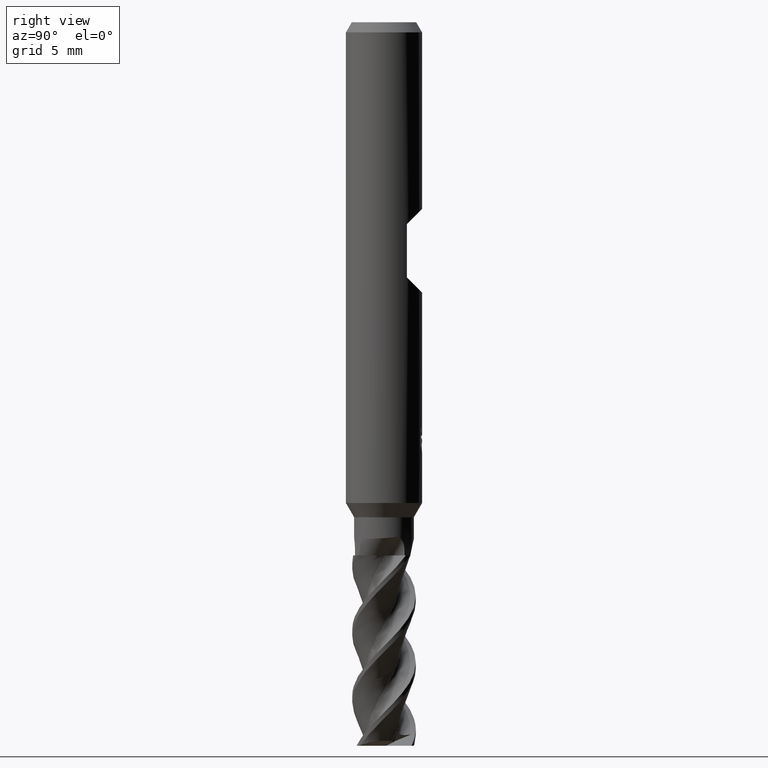
[diagram: clean part render]
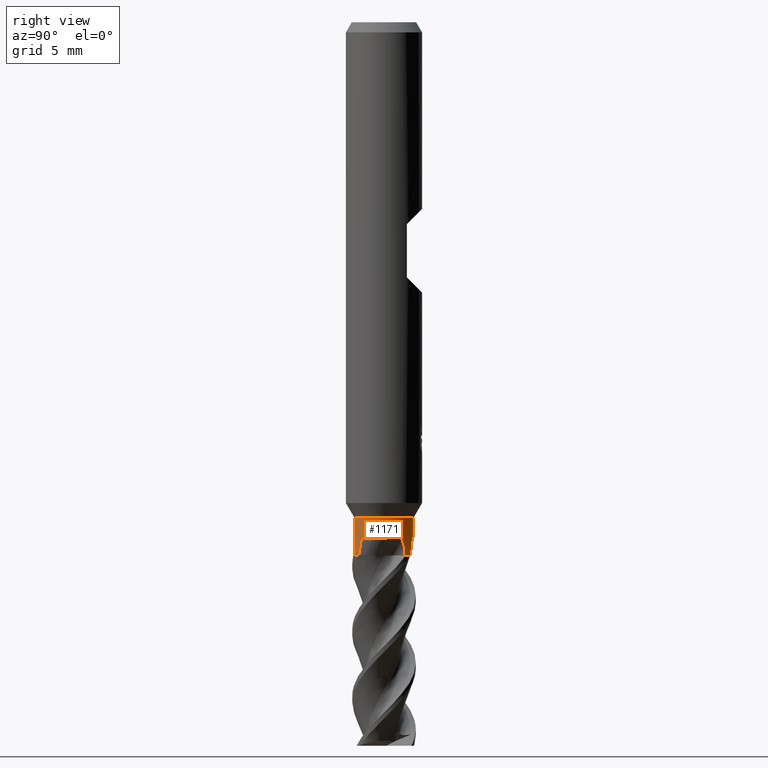
[diagram: same view with one face highlighted and labeled with its STEP entity id]
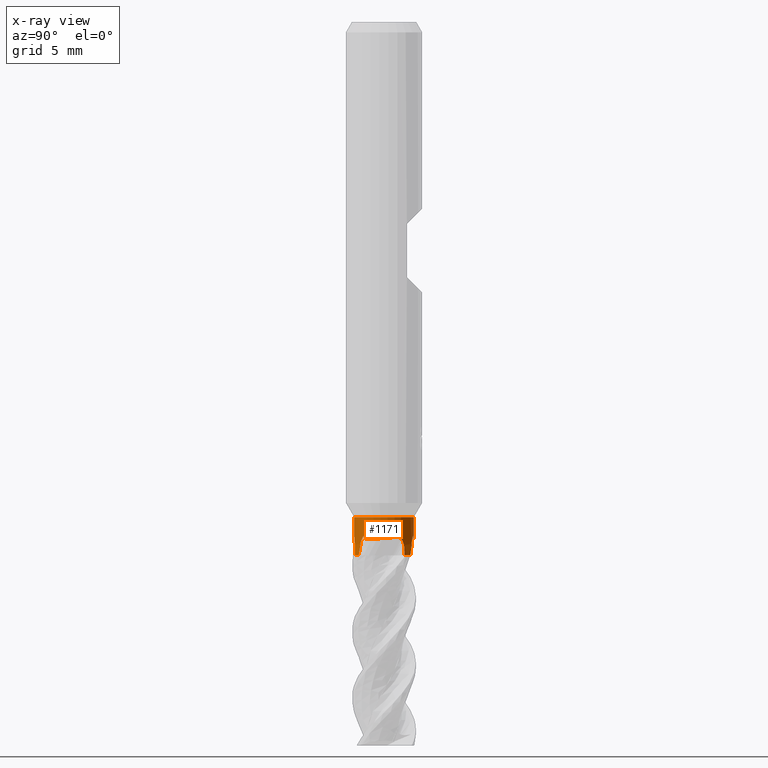
[diagram: x-ray of the same camera — body ghosted, the highlighted face saturated]
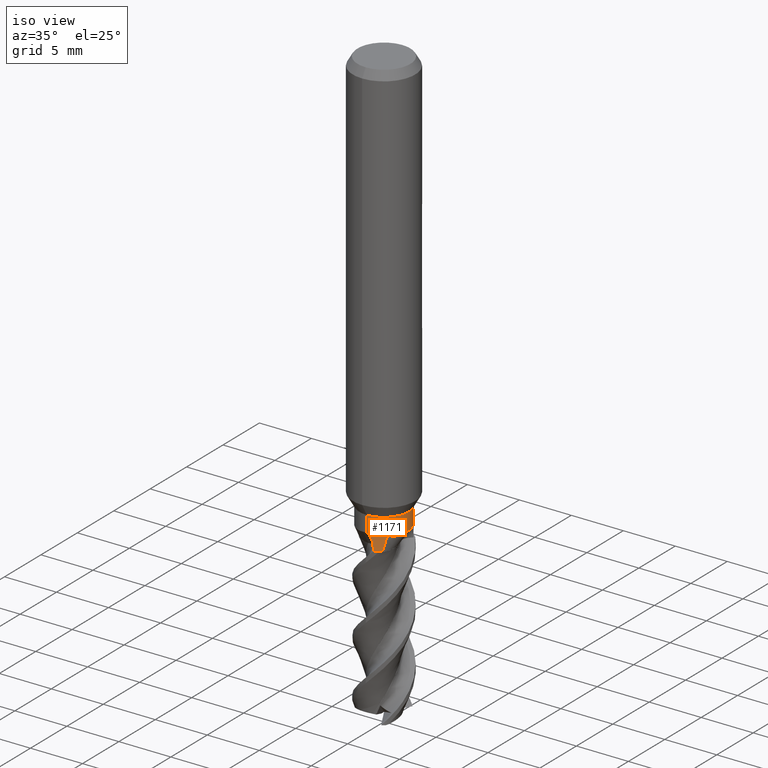
[diagram: same view with one face highlighted and labeled with its STEP entity id]
A machine part, right view. The second image highlights one B-rep face of the part: STEP entity #1171.
The next image is the same camera in x-ray: the body ghosted, the highlighted face saturated — about 0% of this face is hidden behind the body in this view.
A second angle (iso view) of the same face is appended — the face is thin or edge-on in the first view.
In plain terms, the highlighted cylindrical surface (edge-blend (fillet) strip) has radius 2.35 mm, axis along (-0, -0, 1).
Its self-contained STEP definition (entity closure, byte-faithful):
#519=EDGE_CURVE('',#1081,#685,#1438,.T.);
#521=VERTEX_POINT('',#1440);
#573=VERTEX_POINT('',#1503);
#593=EDGE_CURVE('',#619,#1257,#1525,.T.);
#619=VERTEX_POINT('',#1555);
#629=VERTEX_POINT('',#1566);
#673=VERTEX_POINT('',#1611);
#683=EDGE_CURVE('',#1081,#839,#1623,.T.);
#685=VERTEX_POINT('',#1625);
#691=VERTEX_POINT('',#1631);
#699=VERTEX_POINT('',#1639);
#791=EDGE_CURVE('',#691,#629,#1745,.T.);
#801=EDGE_CURVE('',#573,#1087,#1756,.T.);
#829=EDGE_CURVE('',#691,#619,#1785,.T.);
#839=VERTEX_POINT('',#1795);
#869=EDGE_CURVE('',#521,#1323,#1826,.T.);
#903=EDGE_CURVE('',#1115,#1087,#1861,.T.);
#979=EDGE_CURVE('',#685,#629,#1943,.T.);
#995=EDGE_CURVE('',#699,#1323,#1960,.T.);
#1081=VERTEX_POINT('',#2051);
#1087=VERTEX_POINT('',#2058);
#1103=EDGE_CURVE('',#1257,#1343,#2074,.T.);
#1115=VERTEX_POINT('',#2087);
#1171=ADVANCED_FACE('',(#2150),#2151,.T.);
#1205=EDGE_CURVE('',#699,#673,#2191,.T.);
#1257=VERTEX_POINT('',#2245);
#1307=EDGE_CURVE('',#1343,#521,#2299,.T.);
#1321=EDGE_CURVE('',#1115,#839,#2314,.T.);
#1323=VERTEX_POINT('',#2316);
#1343=VERTEX_POINT('',#2340);
#1363=EDGE_CURVE('',#673,#573,#2361,.T.);
#1438=B_SPLINE_CURVE_WITH_KNOTS('',3,(#3495,#3496,#3497,#3498,#3499,#3500,#3501,#3502,#3503,#3504,#3505,#3506,#3507,#3508),.UNSPECIFIED.,.F.,.F.,(4,2,2,2,2,2,4),(0.0,0.225791534576453,0.420775986477734,0.636192857529891,0.942741595366109,1.3016837286876,1.68002176183912),.UNSPECIFIED.);
#1440=CARTESIAN_POINT('',(1.70131929279764,1.62104215443477,-41.6538603278036));
#1503=CARTESIAN_POINT('',(0.503054722043635,2.29547401403928,-40.5699536610327));
#1525=B_SPLINE_CURVE_WITH_KNOTS('',3,(#4620,#4621,#4622,#4623,#4624,#4625,#4626,#4627,#4628,#4629,#4630,#4631,#4632,#4633,#4634,#4635,#4636,#4637,#4638,#4639,#4640,#4641,#4642,#4643,#4644,#4645,#4646,#4647,#4648,#4649,#4650,#4651,#4652,#4653,#4654,#4655,#4656,#4657,#4658,#4659,#4660,#4661,#4662,#4663,#4664,#4665,#4666,#4667,#4668,#4669,#4670,#4671),.UNSPECIFIED.,.F.,.F.,(4,2,2,2,2,2,2,2,2,2,2,2,2,2,2,2,2,2,2,2,2,2,2,2,2,4),(0.0,0.00686553370533188,0.0140347302817056,0.0191756776705009,0.0241776996539955,0.0311038794819155,0.0446836047708644,0.0835293244651358,0.245473949005131,0.334478372924057,0.3440566108486,0.347873757180642,0.350656497003795,0.353638380756822,0.357630254954595,0.366459212286401,0.419556562151446,0.521538347461981,0.545729538114803,0.556764132289915,0.563383270558508,0.568959270973017,0.575273671121209,0.585595431378969,0.609589966627689,0.679119300293392),.UNSPECIFIED.);
#1555=CARTESIAN_POINT('',(1.44793072653657,-1.85088130728345,-41.1092844546738));
#1566=CARTESIAN_POINT('',(0.559533020422345,-2.28236451986904,-42.0000000000006));
#1611=CARTESIAN_POINT('',(0.878944868229086,2.17938544574239,-41.1092844546744));
#1623=LINE('',#4908,#4909);
#1625=CARTESIAN_POINT('',(0.553204039947199,-2.28390680472871,-41.6538603278049));
#1631=CARTESIAN_POINT('',(1.23768405026327,-1.99759935778521,-42.0));
#1639=CARTESIAN_POINT('',(1.11112976529375,2.07066550827947,-42.0));
#1745=CIRCLE('',#6019,2.34995);
#1756=B_SPLINE_CURVE_WITH_KNOTS('',3,(#6034,#6035,#6036,#6037,#6038,#6039,#6040,#6041,#6042,#6043,#6044,#6045,#6046,#6047,#6048,#6049),.UNSPECIFIED.,.F.,.F.,(4,2,2,2,2,2,2,4),(0.0,0.0531139224717142,0.0994830758055718,0.160585596364211,0.271105314126265,0.523818529871865,0.872101180561716,1.20975741269743),.UNSPECIFIED.);
#1785=B_SPLINE_CURVE_WITH_KNOTS('',3,(#6090,#6091,#6092,#6093),.UNSPECIFIED.,.F.,.F.,(4,4),(0.0,1.14806881434368),.UNSPECIFIED.);
#1795=CARTESIAN_POINT('',(2.8777637011649E-016,-2.34995,-39.0));
#1826=B_SPLINE_CURVE_WITH_KNOTS('',3,(#6167,#6168,#6169,#6170),.UNSPECIFIED.,.F.,.F.,(4,4),(0.0,0.346198166740086),.UNSPECIFIED.);
#1861=LINE('',#6543,#6544);
#1943=B_SPLINE_CURVE_WITH_KNOTS('',3,(#7288,#7289,#7290,#7291),.UNSPECIFIED.,.F.,.F.,(4,4),(0.0,0.34619816674481),.UNSPECIFIED.);
#1960=CIRCLE('',#7319,2.34995);
#2051=CARTESIAN_POINT('',(-1.28546618358942E-015,-2.34994999999999,-40.5588321995923));
#2058=CARTESIAN_POINT('',(-1.87955772232037E-014,2.34995,-40.7022480124813));
#2074=B_SPLINE_CURVE_WITH_KNOTS('',3,(#8205,#8206,#8207,#8208,#8209,#8210,#8211,#8212,#8213,#8214,#8215,#8216,#8217,#8218,#8219,#8220),.UNSPECIFIED.,.F.,.F.,(4,2,2,2,2,2,2,4),(0.0,0.0531139224718822,0.0994830758061765,0.160585596359143,0.271105314086711,0.523818529726763,0.87210118027085,1.2097574122651),.UNSPECIFIED.);
#2087=CARTESIAN_POINT('',(0.0,2.34995,-39.0));
#2150=FACE_OUTER_BOUND('',#8838,.T.);
#2151=CYLINDRICAL_SURFACE('',#8839,2.34995);
#2191=B_SPLINE_CURVE_WITH_KNOTS('',3,(#8938,#8939,#8940,#8941),.UNSPECIFIED.,.F.,.F.,(4,4),(0.0,1.14806881434053),.UNSPECIFIED.);
#2245=CARTESIAN_POINT('',(1.73641144886311,-1.58339517580329,-40.5699536610326));
#2299=B_SPLINE_CURVE_WITH_KNOTS('',3,(#9378,#9379,#9380,#9381,#9382,#9383,#9384,#9385,#9386,#9387,#9388,#9389,#9390,#9391),.UNSPECIFIED.,.F.,.F.,(4,2,2,2,2,2,4),(0.0,0.225791534576474,0.420775986477571,0.63619285752917,0.942741595364887,1.30168372868532,1.68002176183582),.UNSPECIFIED.);
#2314=CIRCLE('',#9629,2.34995);
#2316=CARTESIAN_POINT('',(1.69681914469172,1.62575206987648,-42.0));
#2340=CARTESIAN_POINT('',(2.19850851731228,0.829954999867681,-40.5598089890764));
#2361=B_SPLINE_CURVE_WITH_KNOTS('',3,(#10317,#10318,#10319,#10320,#10321,#10322,#10323,#10324,#10325,#10326,#10327,#10328,#10329,#10330,#10331,#10332,#10333,#10334,#10335,#10336,#10337,#10338,#10339,#10340,#10341,#10342,#10343,#10344,#10345,#10346,#10347,#10348,#10349,#10350,#10351,#10352,#10353,#10354,#10355,#10356,#10357,#10358,#10359,#10360,#10361,#10362,#10363,#10364,#10365,#10366,#10367,#10368),.UNSPECIFIED.,.F.,.F.,(4,2,2,2,2,2,2,2,2,2,2,2,2,2,2,2,2,2,2,2,2,2,2,2,2,4),(0.0,0.00686553370482903,0.0140347302793866,0.0191756776673104,0.0241776996501374,0.0311038794775011,0.0446836047691016,0.0835293244642946,0.245473949012331,0.334478372933024,0.344056610860775,0.347873757209399,0.350656497011455,0.353638380725525,0.35763025487973,0.36645921211449,0.419556561331576,0.521538345368107,0.545729535736297,0.556764129778505,0.563383267965177,0.5689592683093,0.575273668376955,0.585595428504704,0.609589963443304,0.679119296254887),.UNSPECIFIED.);
#3495=CARTESIAN_POINT('',(-0.380492144791821,-2.31894172635962,-40.5598089893473));
#3496=CARTESIAN_POINT('',(-0.310457312427793,-2.33043304728132,-40.5347546854825));
#3497=CARTESIAN_POINT('',(-0.23719770734045,-2.33915437111843,-40.521456335779));
#3498=CARTESIAN_POINT('',(-0.0975671450078133,-2.3488193392381,-40.5274810078477));
#3499=CARTESIAN_POINT('',(-0.0351952864589808,-2.35043466549848,-40.5424723309645));
#3500=CARTESIAN_POINT('',(0.0896180938165705,-2.34915433631987,-40.5980251047044));
#3501=CARTESIAN_POINT('',(0.14835758492366,-2.34583956637718,-40.6397437812644));
#3502=CARTESIAN_POINT('',(0.273996437880567,-2.3350964280885,-40.7595425032997));
#3503=CARTESIAN_POINT('',(0.334007869289553,-2.32659174348307,-40.8455849215127));
#3504=CARTESIAN_POINT('',(0.437305029424302,-2.30959250111585,-41.0419905274011));
#3505=CARTESIAN_POINT('',(0.478146715235826,-2.30096722654898,-41.157915284844));
#3506=CARTESIAN_POINT('',(0.535215554264161,-2.28838559098319,-41.3985450619003));
#3507=CARTESIAN_POINT('',(0.55077109204987,-2.28449610924968,-41.5264834440901));
#3508=CARTESIAN_POINT('',(0.553204039849993,-2.28390680475224,-41.6538603278053));
#4620=CARTESIAN_POINT('',(1.44793072653653,-1.85088130728348,-41.1092844546739));
#4621=CARTESIAN_POINT('',(1.44622004539126,-1.85221956046255,-41.110005517862));
#4622=CARTESIAN_POINT('',(1.4444180222367,-1.85362529649962,-41.1105886021642));
#4623=CARTESIAN_POINT('',(1.44075232520119,-1.85647606146355,-41.1111692321362));
#4624=CARTESIAN_POINT('',(1.43881544529356,-1.85797752277227,-41.1111515939276));
#4625=CARTESIAN_POINT('',(1.43567047573259,-1.86040803129351,-41.1101210425335));
#4626=CARTESIAN_POINT('',(1.43446005733217,-1.86134123986697,-41.1094072180662));
#4627=CARTESIAN_POINT('',(1.4323250418098,-1.86298463291852,-41.1073612970217));
#4628=CARTESIAN_POINT('',(1.43146255038531,-1.86364716535733,-41.1061124564501));
#4629=CARTESIAN_POINT('',(1.42978369526497,-1.86493568182439,-41.1027433332725));
#4630=CARTESIAN_POINT('',(1.42913180635648,-1.86543495909617,-41.1005104863712));
#4631=CARTESIAN_POINT('',(1.42783563381809,-1.86642748965167,-41.0938710341354));
#4632=CARTESIAN_POINT('',(1.42769886477125,-1.8665318079045,-41.0889101623804));
#4633=CARTESIAN_POINT('',(1.42827973362049,-1.86608743061468,-41.0714727004542));
#4634=CARTESIAN_POINT('',(1.43125862884117,-1.86380722265763,-41.056201793545));
#4635=CARTESIAN_POINT('',(1.44637191726553,-1.8521636136779,-40.992156576135));
#4636=CARTESIAN_POINT('',(1.47522013780011,-1.8298949967538,-40.9163578469955));
#4637=CARTESIAN_POINT('',(1.53478355410808,-1.77973795441446,-40.7858934675908));
#4638=CARTESIAN_POINT('',(1.55773811117541,-1.75974263464434,-40.739339228007));
#4639=CARTESIAN_POINT('',(1.5833558837676,-1.73645053611971,-40.6906092411644));
#4640=CARTESIAN_POINT('',(1.58585616267831,-1.73416747433305,-40.685887182833));
#4641=CARTESIAN_POINT('',(1.58936582268046,-1.73094862019536,-40.6793071049955));
#4642=CARTESIAN_POINT('',(1.59036764675302,-1.73002821083508,-40.6774343042913));
#4643=CARTESIAN_POINT('',(1.5921025404937,-1.7284315119097,-40.6742006502435));
#4644=CARTESIAN_POINT('',(1.59283493780395,-1.72775659709615,-40.6728384688737));
#4645=CARTESIAN_POINT('',(1.59435391279397,-1.72635504639802,-40.6700194483418));
#4646=CARTESIAN_POINT('',(1.59514068731393,-1.72562810071255,-40.6685626807481));
#4647=CARTESIAN_POINT('',(1.59698302195941,-1.72392351751742,-40.6651594560291));
#4648=CARTESIAN_POINT('',(1.59803951992136,-1.72294421875807,-40.6632139678468));
#4649=CARTESIAN_POINT('',(1.60143834048614,-1.71978790749861,-40.6569751043424));
#4650=CARTESIAN_POINT('',(1.60378903564519,-1.71759604512015,-40.6526904231802));
#4651=CARTESIAN_POINT('',(1.62033427337031,-1.7021044427118,-40.6227526933349));
#4652=CARTESIAN_POINT('',(1.63523750051573,-1.68781046761045,-40.5969037237394));
#4653=CARTESIAN_POINT('',(1.67889742747463,-1.64474761318064,-40.5259877640309));
#4654=CARTESIAN_POINT('',(1.7031598498936,-1.61931477498003,-40.4926566314385));
#4655=CARTESIAN_POINT('',(1.72494997234276,-1.59588540591666,-40.472437724321));
#4656=CARTESIAN_POINT('',(1.7299312780606,-1.59048778869473,-40.4684223510142));
#4657=CARTESIAN_POINT('',(1.7367817542049,-1.58299218539001,-40.4654206122645));
#4658=CARTESIAN_POINT('',(1.73912268035815,-1.58042028770639,-40.4647754601196));
#4659=CARTESIAN_POINT('',(1.74268253664094,-1.57649184269446,-40.465112394961));
#4660=CARTESIAN_POINT('',(1.74398429966969,-1.57505141772449,-40.4655470918732));
#4661=CARTESIAN_POINT('',(1.74619263537428,-1.57260247869555,-40.4671566942159));
#4662=CARTESIAN_POINT('',(1.747068050979,-1.57162956145684,-40.4681595710771));
#4663=CARTESIAN_POINT('',(1.74866213543353,-1.56985583493397,-40.4708267711596));
#4664=CARTESIAN_POINT('',(1.74929957535041,-1.569145155237,-40.4724855798835));
#4665=CARTESIAN_POINT('',(1.750567778745,-1.56773047557553,-40.4771166662968));
#4666=CARTESIAN_POINT('',(1.75096172003591,-1.56729005934365,-40.4803442865091));
#4667=CARTESIAN_POINT('',(1.75155929873815,-1.56662229592782,-40.490622067577));
#4668=CARTESIAN_POINT('',(1.75091845996725,-1.56733888826362,-40.4988212977173));
#4669=CARTESIAN_POINT('',(1.74758561805327,-1.57105801749412,-40.5264297490364));
#4670=CARTESIAN_POINT('',(1.74174586962218,-1.57754524685273,-40.5505606927959));
#4671=CARTESIAN_POINT('',(1.73641144886314,-1.58339517580325,-40.5699536610325));
#4908=CARTESIAN_POINT('',(2.87891921230933E-016,-2.34995,-40.5));
#4909=VECTOR('',#10675,1.0);
#6019=AXIS2_PLACEMENT_3D('',#10791,#10792,#10793);
#6034=CARTESIAN_POINT('',(0.503054719868338,2.295474014516,-40.5699536580264));
#6035=CARTESIAN_POINT('',(0.498282993102471,2.2965197417411,-40.5869710428122));
#6036=CARTESIAN_POINT('',(0.490955457078453,2.29811898266215,-40.6025722865723));
#6037=CARTESIAN_POINT('',(0.470611212543459,2.30236485441525,-40.6285016451115));
#6038=CARTESIAN_POINT('',(0.459155500247241,2.3046937613607,-40.6383297509072));
#6039=CARTESIAN_POINT('',(0.429302714647188,2.3104681410997,-40.6572933579318));
#6040=CARTESIAN_POINT('',(0.409185725321073,2.31416888778545,-40.66567089483));
#6041=CARTESIAN_POINT('',(0.344470517919053,2.32494947099151,-40.684650051691));
#6042=CARTESIAN_POINT('',(0.293358500509554,2.33222945049476,-40.6914968760646));
#6043=CARTESIAN_POINT('',(0.111650848132434,2.35073325833416,-40.7054215016299));
#6044=CARTESIAN_POINT('',(-0.0718905888304362,2.35915519330737,-40.7036180295062));
#6045=CARTESIAN_POINT('',(-0.591700960355418,2.29440740527038,-40.6851789685979));
#6046=CARTESIAN_POINT('',(-0.883241861038663,2.19872113048558,-40.6668392121823));
#6047=CARTESIAN_POINT('',(-1.40509261577722,1.90647937455848,-40.6214477061492));
#6048=CARTESIAN_POINT('',(-1.63222912544642,1.71582841085261,-40.5944276350501));
#6049=CARTESIAN_POINT('',(-1.81801637253946,1.48898672649505,-40.5598089890768));
#6090=CARTESIAN_POINT('',(1.23768405026327,-1.99759935778522,-42.0));
#6091=CARTESIAN_POINT('',(1.34009013346103,-1.93415001028226,-41.6367665929004));
#6092=CARTESIAN_POINT('',(1.43073424987083,-1.86433398347934,-41.2927290891258));
#6093=CARTESIAN_POINT('',(1.44793072478434,-1.8508813086542,-41.1092844577495));
#6167=CARTESIAN_POINT('',(1.70131929279766,1.62104215443477,-41.6538603278036));
#6168=CARTESIAN_POINT('',(1.69975514511047,1.62268376173642,-41.7692374378777));
#6169=CARTESIAN_POINT('',(1.69825441672695,1.62425405728751,-41.8846192234087));
#6170=CARTESIAN_POINT('',(1.69681914469172,1.62575206987648,-42.0));
#6543=CARTESIAN_POINT('',(-2.87660819002046E-016,2.34995,-40.5));
#6544=VECTOR('',#10865,1.0);
#7288=CARTESIAN_POINT('',(0.553204039947197,-2.2839068047287,-41.6538603278049));
#7289=CARTESIAN_POINT('',(0.555407787417087,-2.28337301674714,-41.7692374378806));
#7290=CARTESIAN_POINT('',(0.557518067447519,-2.2828584956184,-41.8846192234104));
#7291=CARTESIAN_POINT('',(0.559533020422345,-2.28236451986904,-42.0000000000006));
#7319=AXIS2_PLACEMENT_3D('',#10963,#10964,#10965);
#8205=CARTESIAN_POINT('',(1.7364114503636,-1.58339517415779,-40.5699536580263));
#8206=CARTESIAN_POINT('',(1.73970294008892,-1.57978560117116,-40.5869710428121));
#8207=CARTESIAN_POINT('',(1.74475169136534,-1.57423938928775,-40.6025722865721));
#8208=CARTESIAN_POINT('',(1.75860084643224,-1.55874369257618,-40.6285016451113));
#8209=CARTESIAN_POINT('',(1.76634559515824,-1.54998720818184,-40.6383297509071));
#8210=CARTESIAN_POINT('',(1.78627274750193,-1.52702112734957,-40.6572933579303));
#8211=CARTESIAN_POINT('',(1.79953618280702,-1.51144967688945,-40.6656708948288));
#8212=CARTESIAN_POINT('',(1.84123004543214,-1.4607949548711,-40.6846500516898));
#8213=CARTESIAN_POINT('',(1.87309070132435,-1.42017063910969,-40.6914968760639));
#8214=CARTESIAN_POINT('',(1.979969295172,-1.27205910000404,-40.7054215016297));
#8215=CARTESIAN_POINT('',(2.07903362328935,-1.11731852043358,-40.703618029506));
#8216=CARTESIAN_POINT('',(2.282865579773,-0.634775639523651,-40.6851789685976));
#8217=CARTESIAN_POINT('',(2.3457692853575,-0.334450675897381,-40.6668392121819));
#8218=CARTESIAN_POINT('',(2.3536058780473,0.263606212653848,-40.6214477061489));
#8219=CARTESIAN_POINT('',(2.30206555505664,0.555637682007171,-40.5944276350498));
#8220=CARTESIAN_POINT('',(2.19850851731228,0.829954999867662,-40.5598089890765));
#8838=EDGE_LOOP('',(#11146,#11147,#11148,#11149,#11150,#11151,#11152,#11153,#11154,#11155,#11156,#11157,#11158,#11159,#11160));
#8839=AXIS2_PLACEMENT_3D('',#11161,#11162,#11163);
#8938=CARTESIAN_POINT('',(1.11112976529363,2.07066550827953,-41.9999999999996));
#8939=CARTESIAN_POINT('',(1.00497797690394,2.1276271040792,-41.636766592901));
#8940=CARTESIAN_POINT('',(0.899193465896468,2.17121919819223,-41.2927290891264));
#8941=CARTESIAN_POINT('',(0.878944870292321,2.17938544491029,-41.1092844577502));
#9378=CARTESIAN_POINT('',(2.1985085173191,0.829954999849617,-40.5598089893461));
#9379=CARTESIAN_POINT('',(2.17344287697832,0.896352604287507,-40.5347546854813));
#9380=CARTESIAN_POINT('',(2.14436596243221,0.964157945282911,-40.5214563357778));
#9381=CARTESIAN_POINT('',(2.08292078918432,1.08991404346746,-40.5274810078465));
#9382=CARTESIAN_POINT('',(2.05313377348684,1.14473732058215,-40.5424723309632));
#9383=CARTESIAN_POINT('',(1.9896182857551,1.25218871404383,-40.5980251047031));
#9384=CARTESIAN_POINT('',(1.95737786522346,1.30140122057662,-40.6397437812632));
#9385=CARTESIAN_POINT('',(1.88525460807072,1.4048360897952,-40.7595425032985));
#9386=CARTESIAN_POINT('',(1.84788361944677,1.45255517161012,-40.8455849215113));
#9387=CARTESIAN_POINT('',(1.78151326364424,1.53351351524206,-41.0419905273998));
#9388=CARTESIAN_POINT('',(1.75362271384894,1.56457081540479,-41.1579152848428));
#9389=CARTESIAN_POINT('',(1.71419227831366,1.6077030619849,-41.398545061899));
#9390=CARTESIAN_POINT('',(1.70304611943203,1.61922981201011,-41.5264834440887));
#9391=CARTESIAN_POINT('',(1.70131929286662,1.62104215436238,-41.653860327804));
#9629=AXIS2_PLACEMENT_3D('',#11343,#11344,#11345);
#10317=CARTESIAN_POINT('',(0.878944868229161,2.17938544574236,-41.1092844546745));
#10318=CARTESIAN_POINT('',(0.880959170051411,2.17857307900238,-41.1100055178626));
#10319=CARTESIAN_POINT('',(0.883077584747927,2.17771534919081,-41.1105886021648));
#10320=CARTESIAN_POINT('',(0.88737926814438,2.17596614491756,-41.1111692321368));
#10321=CARTESIAN_POINT('',(0.889648011734615,2.17503948836772,-41.1111515939283));
#10322=CARTESIAN_POINT('',(0.893325378638912,2.1735311190943,-41.1101210425342));
#10323=CARTESIAN_POINT('',(0.894738770170619,2.17294947029711,-41.1094072180668));
#10324=CARTESIAN_POINT('',(0.897229498062756,2.17192218914307,-41.1073612970224));
#10325=CARTESIAN_POINT('',(0.898234513697828,2.17150651587834,-41.1061124564508));
#10326=CARTESIAN_POINT('',(0.900189829251817,2.17069684292831,-41.102743333273));
#10327=CARTESIAN_POINT('',(0.900948160506938,2.170381929209,-41.1005104863711));
#10328=CARTESIAN_POINT('',(0.902455803451014,2.16975567614091,-41.0938710341362));
#10329=CARTESIAN_POINT('',(0.902614530231617,2.16968938979826,-41.0889101623819));
#10330=CARTESIAN_POINT('',(0.901939253785091,2.16997024833308,-41.0714727004547));
#10331=CARTESIAN_POINT('',(0.898475088157919,2.17140994329092,-41.0562017935451));
#10332=CARTESIAN_POINT('',(0.880834782777242,2.17867663051142,-40.9921565761343));
#10333=CARTESIAN_POINT('',(0.847125484545683,2.19252561388662,-40.9163578469934));
#10334=CARTESIAN_POINT('',(0.773906503546988,2.21903052437582,-40.785893467589));
#10335=CARTESIAN_POINT('',(0.745112770136214,2.22891209404347,-40.7393392280063));
#10336=CARTESIAN_POINT('',(0.712132334809719,2.23945168663456,-40.6906092411628));
#10337=CARTESIAN_POINT('',(0.708905005848793,2.24047546079442,-40.6858871828315));
#10338=CARTESIAN_POINT('',(0.704362566388338,2.24190548844767,-40.6793071049867));
#10339=CARTESIAN_POINT('',(0.703064556466556,2.24231288886374,-40.6774343042861));
#10340=CARTESIAN_POINT('',(0.70081432778006,2.24301700144852,-40.6742006502604));
#10341=CARTESIAN_POINT('',(0.699863635744374,2.24331381872018,-40.672838468881));
#10342=CARTESIAN_POINT('',(0.697890369732003,2.2439285143027,-40.6700194483376));
#10343=CARTESIAN_POINT('',(0.696867429041881,2.24424640818109,-40.6685626807448));
#10344=CARTESIAN_POINT('',(0.694470049367839,2.24498962518923,-40.6651594560237));
#10345=CARTESIAN_POINT('',(0.693093702783841,2.2454149298835,-40.6632139678422));
#10346=CARTESIAN_POINT('',(0.68866084677023,2.24678023920525,-40.6569751043402));
#10347=CARTESIAN_POINT('',(0.685587290685572,2.24772006974148,-40.6526904231726));
#10348=CARTESIAN_POINT('',(0.663898550588195,2.25430286471998,-40.6227526933226));
#10349=CARTESIAN_POINT('',(0.644067991457873,2.26006245047515,-40.5969037237293));
#10350=CARTESIAN_POINT('',(0.584944502097205,2.27634162912983,-40.5259877640396));
#10351=CARTESIAN_POINT('',(0.550787806925418,2.28463708419966,-40.4926566314547));
#10352=CARTESIAN_POINT('',(0.519602316896679,2.29179319926094,-40.4724377243298));
#10353=CARTESIAN_POINT('',(0.512437190398258,2.29340832794691,-40.4684223510183));
#10354=CARTESIAN_POINT('',(0.502520569441478,2.29559321266489,-40.4654206122653));
#10355=CARTESIAN_POINT('',(0.499122777634485,2.29633456534027,-40.46477546012));
#10356=CARTESIAN_POINT('',(0.493940716314861,2.29745326880915,-40.4651123949606));
#10357=CARTESIAN_POINT('',(0.492042390183474,2.29786041617694,-40.4655470918723));
#10358=CARTESIAN_POINT('',(0.488817378919122,2.29854842148287,-40.4671566942148));
#10359=CARTESIAN_POINT('',(0.487537100072066,2.29882009501612,-40.4681595710756));
#10360=CARTESIAN_POINT('',(0.485203965616127,2.29931374938819,-40.470826771158));
#10361=CARTESIAN_POINT('',(0.484269778986023,2.29951044870113,-40.472485579882));
#10362=CARTESIAN_POINT('',(0.4824105287638,2.29990140522725,-40.4771166662934));
#10363=CARTESIAN_POINT('',(0.48183214647299,2.30002236027691,-40.480344286504));
#10364=CARTESIAN_POINT('',(0.48095505703917,2.30020599690608,-40.4906220675688));
#10365=CARTESIAN_POINT('',(0.481896063590438,2.30000931041888,-40.4988212977061));
#10366=CARTESIAN_POINT('',(0.486783344938352,2.2989825492704,-40.5264297490256));
#10367=CARTESIAN_POINT('',(0.495321324581186,2.29716879345614,-40.5505606927926));
#10368=CARTESIAN_POINT('',(0.503054722043544,2.2954740140393,-40.5699536610326));
#10675=DIRECTION('',(-0.0,-0.0,1.0));
#10791=CARTESIAN_POINT('',(0.0,0.0,-42.0));
#10792=DIRECTION('',(0.0,0.0,-1.0));
#10793=DIRECTION('',(0.0,1.0,0.0));
#10865=DIRECTION('',(0.0,0.0,-1.0));
#10963=CARTESIAN_POINT('',(0.0,0.0,-42.0));
#10964=DIRECTION('',(0.0,0.0,-1.0));
#10965=DIRECTION('',(0.0,1.0,0.0));
#11146=ORIENTED_EDGE('',*,*,#903,.F.);
#11147=ORIENTED_EDGE('',*,*,#1321,.T.);
#11148=ORIENTED_EDGE('',*,*,#683,.F.);
#11149=ORIENTED_EDGE('',*,*,#519,.T.);
#11150=ORIENTED_EDGE('',*,*,#979,.T.);
#11151=ORIENTED_EDGE('',*,*,#791,.F.);
#11152=ORIENTED_EDGE('',*,*,#829,.T.);
#11153=ORIENTED_EDGE('',*,*,#593,.T.);
#11154=ORIENTED_EDGE('',*,*,#1103,.T.);
#11155=ORIENTED_EDGE('',*,*,#1307,.T.);
#11156=ORIENTED_EDGE('',*,*,#869,.T.);
#11157=ORIENTED_EDGE('',*,*,#995,.F.);
#11158=ORIENTED_EDGE('',*,*,#1205,.T.);
#11159=ORIENTED_EDGE('',*,*,#1363,.T.);
#11160=ORIENTED_EDGE('',*,*,#801,.T.);
#11161=CARTESIAN_POINT('',(0.0,0.0,-40.5));
#11162=DIRECTION('',(-0.0,-0.0,1.0));
#11163=DIRECTION('',(0.0,1.0,0.0));
#11343=CARTESIAN_POINT('',(0.0,0.0,-39.0));
#11344=DIRECTION('',(0.0,0.0,-1.0));
#11345=DIRECTION('',(0.0,1.0,0.0));